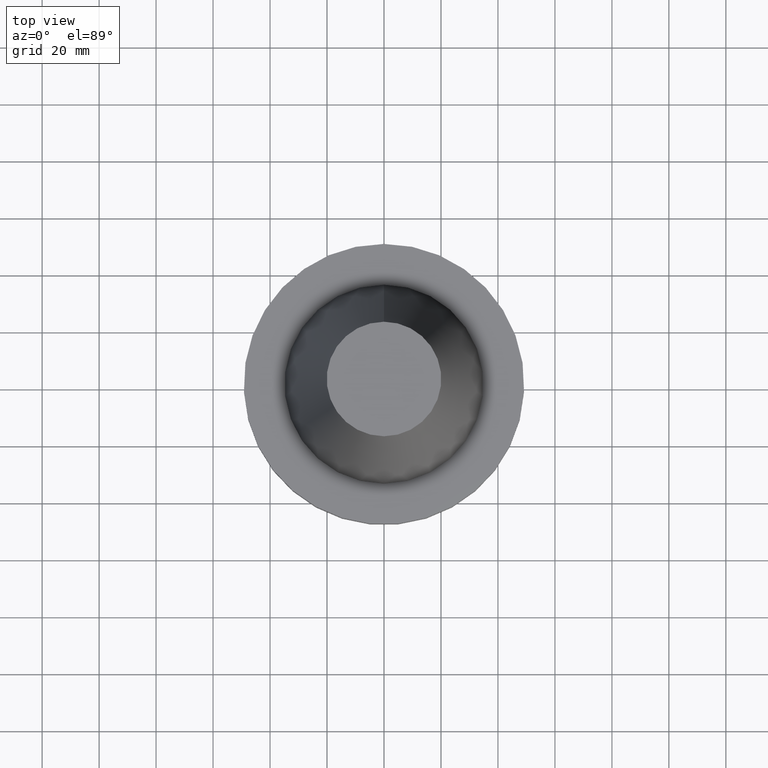
[diagram: clean part render]
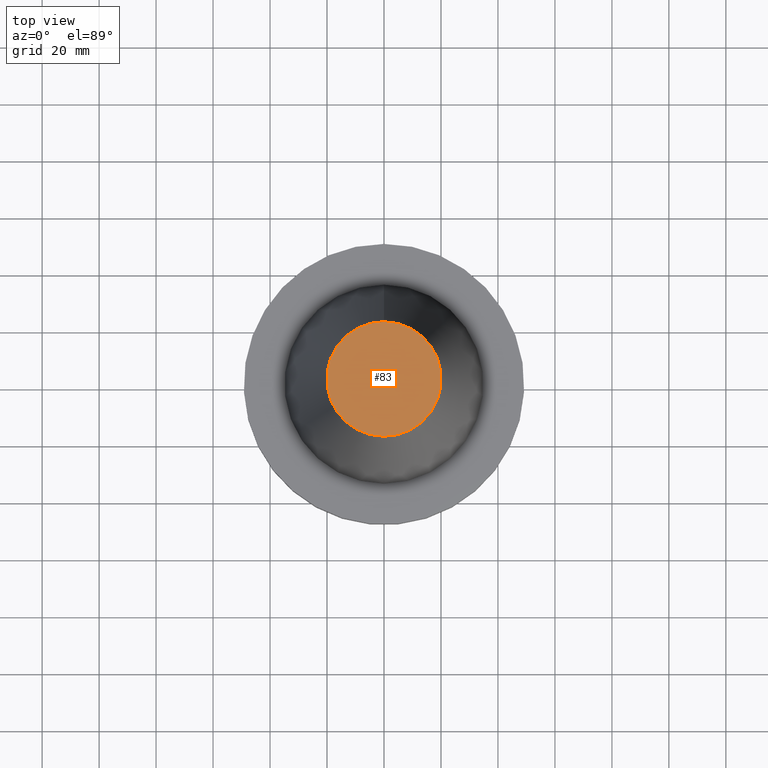
[diagram: same view with one face highlighted and labeled with its STEP entity id]
A machine part, top view. The second image highlights one B-rep face of the part: STEP entity #83.
In plain terms, the highlighted planar face has unit normal (-0, -0, 1).
Its self-contained STEP definition (entity closure, byte-faithful):
#83=ADVANCED_FACE('Unnamed[1]',(#195),#196,.T.);
#102=EDGE_CURVE('Unnamed[1]',#225,#225,#226,.T.);
#195=FACE_OUTER_BOUND('',#339,.T.);
#196=PLANE('',#340);
#225=VERTEX_POINT('',#376);
#226=CIRCLE('',#377,20.1083333297217);
#339=EDGE_LOOP('',(#488));
#340=AXIS2_PLACEMENT_3D('',#489,#490,#491);
#376=CARTESIAN_POINT('',(-6.22120573966855E-015,20.1083333297217,101.6));
#377=AXIS2_PLACEMENT_3D('',#524,#525,#526);
#488=ORIENTED_EDGE('',*,*,#102,.F.);
#489=CARTESIAN_POINT('',(-6.22120573966855E-015,10.0541666648608,101.6));
#490=DIRECTION('',(-6.12323399573677E-017,-1.22464679914735E-016,1.0));
#491=DIRECTION('',(1.23259516440783E-032,-1.0,-1.22464679914735E-016));
#524=CARTESIAN_POINT('',(-6.22120573966855E-015,-1.24424114793371E-014,101.6));
#525=DIRECTION('',(6.12323399573676E-017,1.22464679914735E-016,-1.0));
#526=DIRECTION('',(-1.23259516440783E-032,1.0,1.22464679914735E-016));